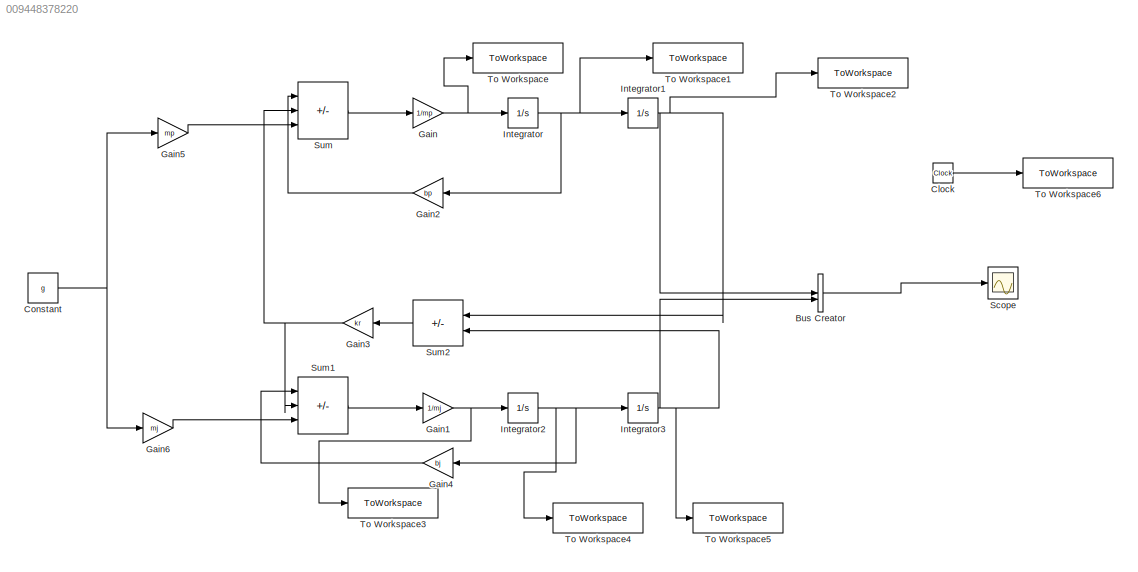
MODEL slx_009448378220
KIND model
CONFIG AbsTol = auto
CONFIG EnableMultiTasking = off
CONFIG FixedStep = auto
CONFIG MaxStep = auto
CONFIG MinStep = auto
CONFIG RelTol = 1e-3
CONFIG SampleTimeConstraint = Unconstrained
CONFIG SolverName = VariableStepAuto
CONFIG StartTime = 0.0
CONFIG StopTime = 10.0
BLOCK [BusCreator] Bus Creator
  DisplayOption = bar
  InheritFromInputs = on
  Inputs = 2
BLOCK [Clock] Clock
BLOCK [Constant] Constant
  Value = g
BLOCK [Gain] Gain
  Gain = 1/mp
BLOCK [Gain] Gain1
  Gain = 1/mj
BLOCK [Gain] Gain2
  Gain = bp
BLOCK [Gain] Gain3
  Gain = kr
BLOCK [Gain] Gain4
  Gain = bj
BLOCK [Gain] Gain5
  Gain = mp
BLOCK [Gain] Gain6
  Gain = mj
BLOCK [Integrator] Integrator
BLOCK [Integrator] Integrator1
BLOCK [Integrator] Integrator2
BLOCK [Integrator] Integrator3
BLOCK [Scope] Scope
  Floating = off
  NumInputPorts = 1
  ScopeSpecificationString = Simulink.scopes.TimeScopeBlockCfg('CurrentConfiguration', extmgr.ConfigurationSet(extmgr.Configuration('Core','General UI',true),extmgr.Configuration('Core','Source UI',true),extmgr.Configuration('Sources','WiredSimulink',true),extmgr.Configuration('Visuals','Time Domain',true,'SerializedDisplays',{struct('MinYLimReal','-7.45631','MaxYLimReal','67.10678','YLabelReal','','MinYLimMag','0.00000','Max...<+1349ch>
BLOCK [Sum] Sum
  IconShape = rectangular
  Inputs = |--+
BLOCK [Sum] Sum1
  IconShape = rectangular
  Inputs = |-++
BLOCK [Sum] Sum2
  IconShape = rectangular
  Inputs = |+-
BLOCK [ToWorkspace] To Workspace
  FixptAsFi = on
  MaxDataPoints = inf
  SampleTime = -1
  SaveFormat = Timeseries
  VariableName = ap
BLOCK [ToWorkspace] To Workspace1
  FixptAsFi = on
  MaxDataPoints = inf
  SampleTime = -1
  SaveFormat = Timeseries
  VariableName = vp
BLOCK [ToWorkspace] To Workspace2
  FixptAsFi = on
  MaxDataPoints = inf
  SampleTime = -1
  SaveFormat = Timeseries
  VariableName = xp
BLOCK [ToWorkspace] To Workspace3
  FixptAsFi = on
  MaxDataPoints = inf
  SampleTime = -1
  SaveFormat = Timeseries
  VariableName = aj
BLOCK [ToWorkspace] To Workspace4
  FixptAsFi = on
  MaxDataPoints = inf
  SampleTime = -1
  SaveFormat = Timeseries
  VariableName = vj
BLOCK [ToWorkspace] To Workspace5
  FixptAsFi = on
  MaxDataPoints = inf
  SampleTime = -1
  SaveFormat = Timeseries
  VariableName = xj
BLOCK [ToWorkspace] To Workspace6
  FixptAsFi = on
  MaxDataPoints = inf
  SampleTime = -1
  SaveFormat = Timeseries
  VariableName = time
LINE Bus Creator:1 -> Scope:1
LINE Clock:1 -> To Workspace6:1
NET Constant:1 -> Gain5:1, Gain6:1
NET Gain1:1 -> Integrator2:1, To Workspace3:1
LINE Gain2:1 -> Sum:1
NET Gain3:1 -> Sum1:2, Sum:2
LINE Gain4:1 -> Sum1:1
LINE Gain5:1 -> Sum:3
LINE Gain6:1 -> Sum1:3
NET Gain:1 -> Integrator:1, To Workspace:1
NET Integrator1:1 -> Bus Creator:1, Sum2:1, To Workspace2:1
NET Integrator2:1 -> Gain4:1, Integrator3:1, To Workspace4:1
NET Integrator3:1 -> Bus Creator:2, Sum2:2, To Workspace5:1
NET Integrator:1 -> Gain2:1, Integrator1:1, To Workspace1:1
LINE Sum1:1 -> Gain1:1
LINE Sum2:1 -> Gain3:1
LINE Sum:1 -> Gain:1
note: NET lines group one-source signal fan-out (src -> all destinations, sorted); 1:1 wires keep LINE
